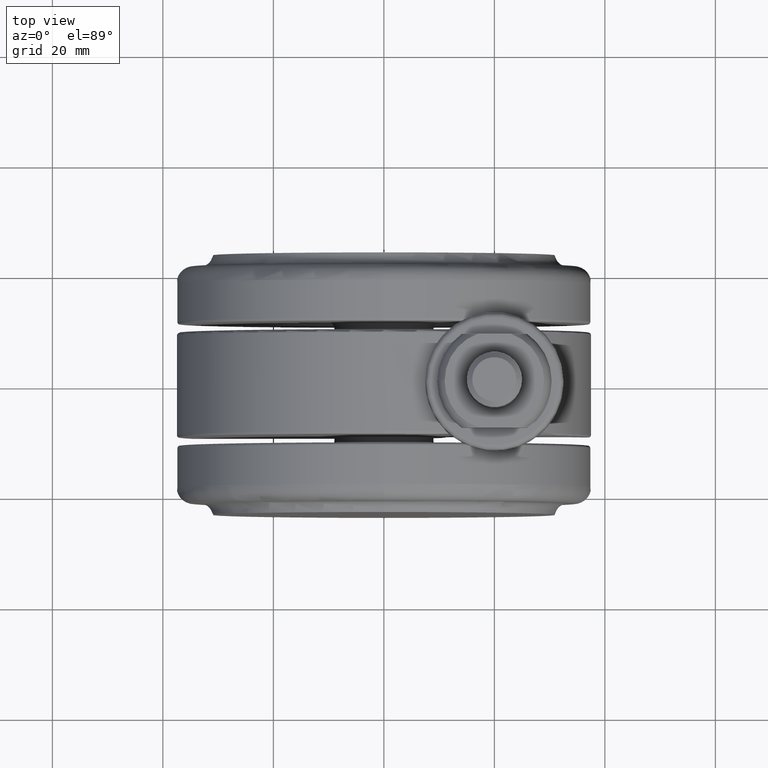
[diagram: clean part render]
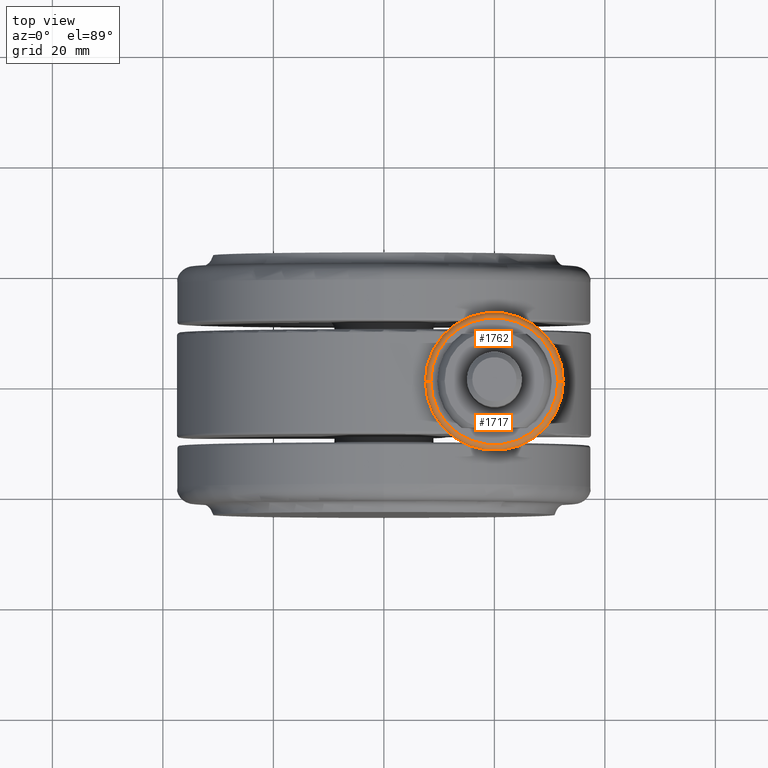
[diagram: same view with one multi-face feature highlighted, each face labeled with its STEP entity id]
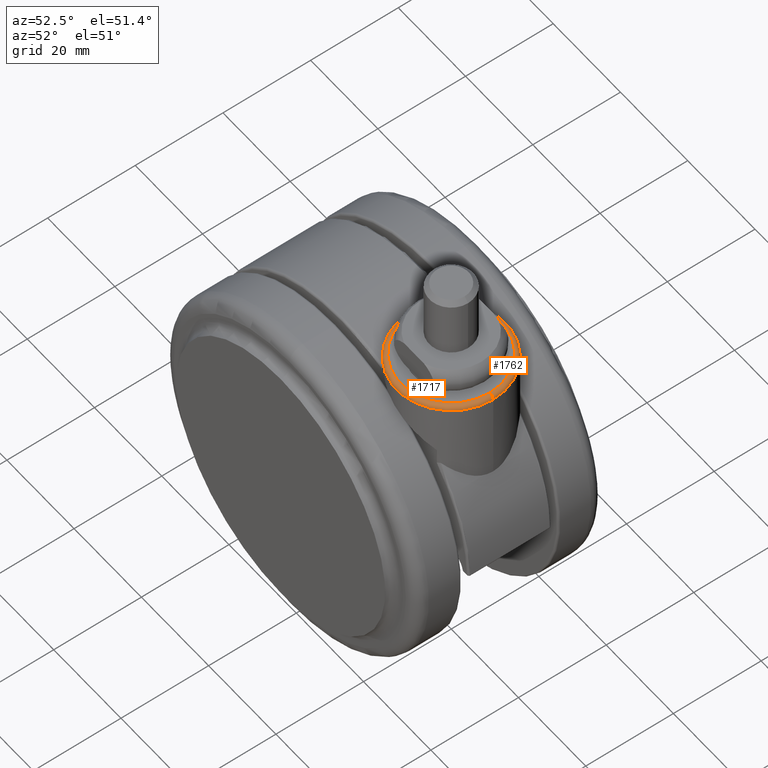
[diagram: same view with one multi-face feature highlighted, each face labeled with its STEP entity id]
A machine part, top view. The highlighted faces form ONE feature: a constant-radius fillet chain: 2 tangent blend faces with common blend radius 1 mm. The faces share edges in the B-rep.
A second angle (auxiliary view) of the same feature is appended — it is thin or edge-on in the first view.
Their STEP definitions:
[1] entity #1717 (Torus):
#83 = EDGE_CURVE ( 'NONE', #1247, #2556, #166, .T. ) ;
#166 = CIRCLE ( 'NONE', #1261, 1.000000000000000000 ) ;
#285 = DIRECTION ( 'NONE',  ( 1.000000000000000000, 0.0000000000000000000, 0.0000000000000000000 ) ) ;
#356 = CARTESIAN_POINT ( 'NONE',  ( -12.50000000000000000, 2.995251792933819000E-014, -1.000000000000000000 ) ) ;
#591 = CIRCLE ( 'NONE', #3073, 11.50000000000000000 ) ;
#765 = VERTEX_POINT ( 'NONE', #3115 ) ;
#807 = EDGE_CURVE ( 'NONE', #765, #2556, #591, .T. ) ;
#848 = ORIENTED_EDGE ( 'NONE', *, *, #807, .F. ) ;
#1247 = VERTEX_POINT ( 'NONE', #3331 ) ;
#1261 = AXIS2_PLACEMENT_3D ( 'NONE', #2893, #1612, #1585 ) ;
#1350 = CIRCLE ( 'NONE', #3121, 1.000000000000000900 ) ;
#1354 = CARTESIAN_POINT ( 'NONE',  ( 11.50000000000000000, 2.842170943040399500E-014, 0.0000000000000000000 ) ) ;
#1474 = EDGE_CURVE ( 'NONE', #3664, #765, #1350, .T. ) ;
#1540 = CARTESIAN_POINT ( 'NONE',  ( 0.0000000000000000000, 2.842170943040399500E-014, -1.000000000000000000 ) ) ;
#1542 = CARTESIAN_POINT ( 'NONE',  ( 0.0000000000000000000, 2.842170943040399500E-014, -1.000000000000000000 ) ) ;
#1585 = DIRECTION ( 'NONE',  ( 0.0000000000000000000, 0.0000000000000000000, -1.000000000000000000 ) ) ;
#1612 = DIRECTION ( 'NONE',  ( 0.0000000000000000000, -1.000000000000000000, 0.0000000000000000000 ) ) ;
#1717 = ADVANCED_FACE ( 'NONE', ( #2295 ), #3021, .T. ) ;
#1760 = EDGE_CURVE ( 'NONE', #1247, #3664, #3734, .T. ) ;
#1793 = AXIS2_PLACEMENT_3D ( 'NONE', #1540, #3677, #2460 ) ;
#1845 = DIRECTION ( 'NONE',  ( 1.000000000000000000, 0.0000000000000000000, 0.0000000000000000000 ) ) ;
#2295 = FACE_OUTER_BOUND ( 'NONE', #2604, .T. ) ;
#2460 = DIRECTION ( 'NONE',  ( 1.000000000000000000, 0.0000000000000000000, 0.0000000000000000000 ) ) ;
#2556 = VERTEX_POINT ( 'NONE', #1354 ) ;
#2604 = EDGE_LOOP ( 'NONE', ( #2702, #3839, #2721, #848 ) ) ;
#2702 = ORIENTED_EDGE ( 'NONE', *, *, #1474, .F. ) ;
#2721 = ORIENTED_EDGE ( 'NONE', *, *, #83, .T. ) ;
#2723 = CARTESIAN_POINT ( 'NONE',  ( -11.50000000000000000, 2.983005324942345500E-014, -1.000000000000000000 ) ) ;
#2893 = CARTESIAN_POINT ( 'NONE',  ( 11.50000000000000000, 2.842170943040399500E-014, -1.000000000000000000 ) ) ;
#3021 = TOROIDAL_SURFACE ( 'NONE', #1793, 11.50000000000000000, 1.000000000000000000 ) ;
#3038 = AXIS2_PLACEMENT_3D ( 'NONE', #1542, #3678, #1845 ) ;
#3073 = AXIS2_PLACEMENT_3D ( 'NONE', #3903, #3868, #285 ) ;
#3115 = CARTESIAN_POINT ( 'NONE',  ( -11.50000000000000000, 2.989128558938082300E-014, 0.0000000000000000000 ) ) ;
#3121 = AXIS2_PLACEMENT_3D ( 'NONE', #2723, #3639, #3347 ) ;
#3331 = CARTESIAN_POINT ( 'NONE',  ( 12.50000000000000000, 2.842170943040399500E-014, -1.000000000000000000 ) ) ;
#3347 = DIRECTION ( 'NONE',  ( -1.000000000000000000, 1.224646799147349500E-016, 0.0000000000000000000 ) ) ;
#3639 = DIRECTION ( 'NONE',  ( 1.224646799147353200E-016, 1.000000000000000000, -0.0000000000000000000 ) ) ;
#3664 = VERTEX_POINT ( 'NONE', #356 ) ;
#3677 = DIRECTION ( 'NONE',  ( 0.0000000000000000000, 0.0000000000000000000, 1.000000000000000000 ) ) ;
#3678 = DIRECTION ( 'NONE',  ( -0.0000000000000000000, -0.0000000000000000000, -1.000000000000000000 ) ) ;
#3734 = CIRCLE ( 'NONE', #3038, 12.50000000000000000 ) ;
#3839 = ORIENTED_EDGE ( 'NONE', *, *, #1760, .F. ) ;
#3868 = DIRECTION ( 'NONE',  ( 0.0000000000000000000, 0.0000000000000000000, 1.000000000000000000 ) ) ;
#3903 = CARTESIAN_POINT ( 'NONE',  ( 0.0000000000000000000, 2.842170943040399500E-014, 0.0000000000000000000 ) ) ;
[2] entity #1762 (Torus):
#3 = CARTESIAN_POINT ( 'NONE',  ( 0.0000000000000000000, 2.842170943040399500E-014, -1.000000000000000000 ) ) ;
#17 = DIRECTION ( 'NONE',  ( 1.000000000000000000, 0.0000000000000000000, 0.0000000000000000000 ) ) ;
#56 = CARTESIAN_POINT ( 'NONE',  ( 0.0000000000000000000, 2.842170943040399500E-014, -1.000000000000000000 ) ) ;
#83 = EDGE_CURVE ( 'NONE', #1247, #2556, #166, .T. ) ;
#166 = CIRCLE ( 'NONE', #1261, 1.000000000000000000 ) ;
#223 = AXIS2_PLACEMENT_3D ( 'NONE', #549, #2670, #860 ) ;
#356 = CARTESIAN_POINT ( 'NONE',  ( -12.50000000000000000, 2.995251792933819000E-014, -1.000000000000000000 ) ) ;
#367 = DIRECTION ( 'NONE',  ( 1.000000000000000000, 0.0000000000000000000, 0.0000000000000000000 ) ) ;
#469 = ORIENTED_EDGE ( 'NONE', *, *, #3012, .F. ) ;
#549 = CARTESIAN_POINT ( 'NONE',  ( 0.0000000000000000000, 2.842170943040399500E-014, 0.0000000000000000000 ) ) ;
#765 = VERTEX_POINT ( 'NONE', #3115 ) ;
#860 = DIRECTION ( 'NONE',  ( 1.000000000000000000, 0.0000000000000000000, 0.0000000000000000000 ) ) ;
#1115 = CIRCLE ( 'NONE', #2396, 12.50000000000000000 ) ;
#1247 = VERTEX_POINT ( 'NONE', #3331 ) ;
#1261 = AXIS2_PLACEMENT_3D ( 'NONE', #2893, #1612, #1585 ) ;
#1350 = CIRCLE ( 'NONE', #3121, 1.000000000000000900 ) ;
#1354 = CARTESIAN_POINT ( 'NONE',  ( 11.50000000000000000, 2.842170943040399500E-014, 0.0000000000000000000 ) ) ;
#1474 = EDGE_CURVE ( 'NONE', #3664, #765, #1350, .T. ) ;
#1585 = DIRECTION ( 'NONE',  ( 0.0000000000000000000, 0.0000000000000000000, -1.000000000000000000 ) ) ;
#1612 = DIRECTION ( 'NONE',  ( 0.0000000000000000000, -1.000000000000000000, 0.0000000000000000000 ) ) ;
#1762 = ADVANCED_FACE ( 'NONE', ( #2923 ), #3536, .T. ) ;
#2190 = DIRECTION ( 'NONE',  ( -0.0000000000000000000, -0.0000000000000000000, -1.000000000000000000 ) ) ;
#2396 = AXIS2_PLACEMENT_3D ( 'NONE', #56, #2190, #367 ) ;
#2443 = DIRECTION ( 'NONE',  ( 0.0000000000000000000, 0.0000000000000000000, 1.000000000000000000 ) ) ;
#2556 = VERTEX_POINT ( 'NONE', #1354 ) ;
#2670 = DIRECTION ( 'NONE',  ( 0.0000000000000000000, 0.0000000000000000000, 1.000000000000000000 ) ) ;
#2723 = CARTESIAN_POINT ( 'NONE',  ( -11.50000000000000000, 2.983005324942345500E-014, -1.000000000000000000 ) ) ;
#2776 = ORIENTED_EDGE ( 'NONE', *, *, #3929, .F. ) ;
#2797 = ORIENTED_EDGE ( 'NONE', *, *, #1474, .T. ) ;
#2893 = CARTESIAN_POINT ( 'NONE',  ( 11.50000000000000000, 2.842170943040399500E-014, -1.000000000000000000 ) ) ;
#2923 = FACE_OUTER_BOUND ( 'NONE', #3762, .T. ) ;
#3012 = EDGE_CURVE ( 'NONE', #3664, #1247, #1115, .T. ) ;
#3115 = CARTESIAN_POINT ( 'NONE',  ( -11.50000000000000000, 2.989128558938082300E-014, 0.0000000000000000000 ) ) ;
#3121 = AXIS2_PLACEMENT_3D ( 'NONE', #2723, #3639, #3347 ) ;
#3289 = AXIS2_PLACEMENT_3D ( 'NONE', #3, #2443, #17 ) ;
#3291 = ORIENTED_EDGE ( 'NONE', *, *, #83, .F. ) ;
#3309 = CIRCLE ( 'NONE', #223, 11.50000000000000000 ) ;
#3331 = CARTESIAN_POINT ( 'NONE',  ( 12.50000000000000000, 2.842170943040399500E-014, -1.000000000000000000 ) ) ;
#3347 = DIRECTION ( 'NONE',  ( -1.000000000000000000, 1.224646799147349500E-016, 0.0000000000000000000 ) ) ;
#3536 = TOROIDAL_SURFACE ( 'NONE', #3289, 11.50000000000000000, 1.000000000000000000 ) ;
#3639 = DIRECTION ( 'NONE',  ( 1.224646799147353200E-016, 1.000000000000000000, -0.0000000000000000000 ) ) ;
#3664 = VERTEX_POINT ( 'NONE', #356 ) ;
#3762 = EDGE_LOOP ( 'NONE', ( #469, #2797, #2776, #3291 ) ) ;
#3929 = EDGE_CURVE ( 'NONE', #2556, #765, #3309, .T. ) ;